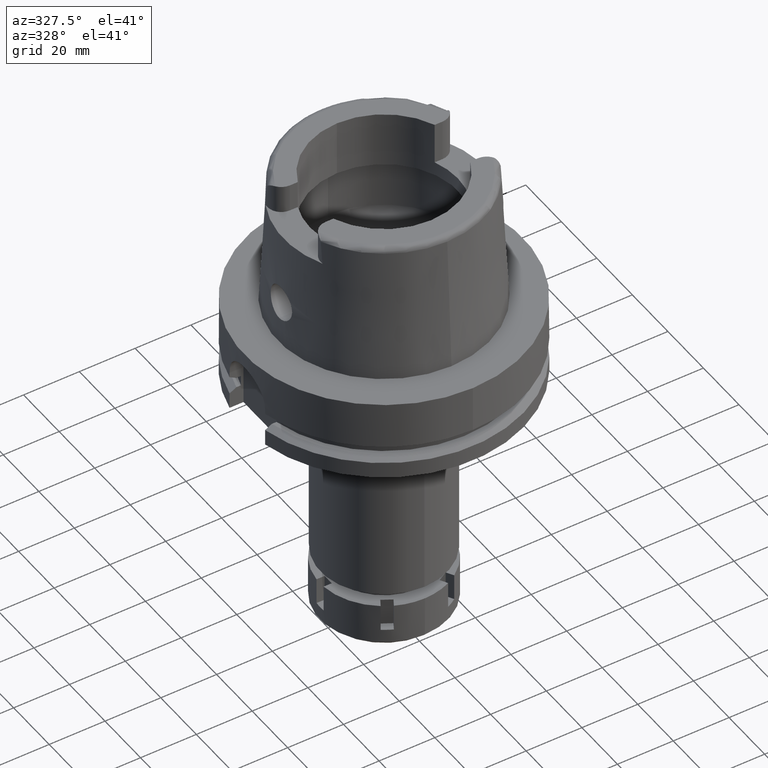
[diagram: clean part render]
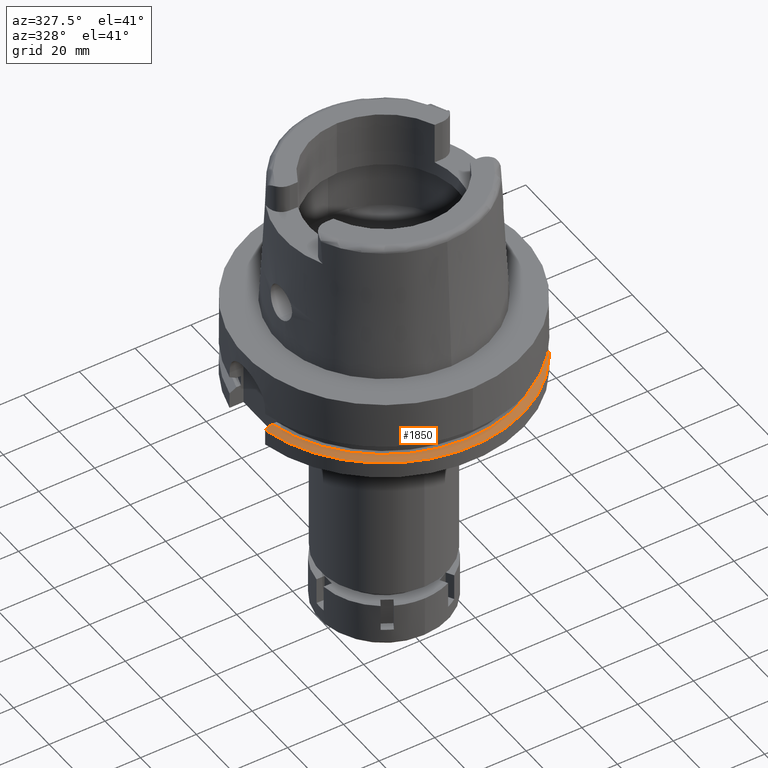
[diagram: same view with one face highlighted and labeled with its STEP entity id]
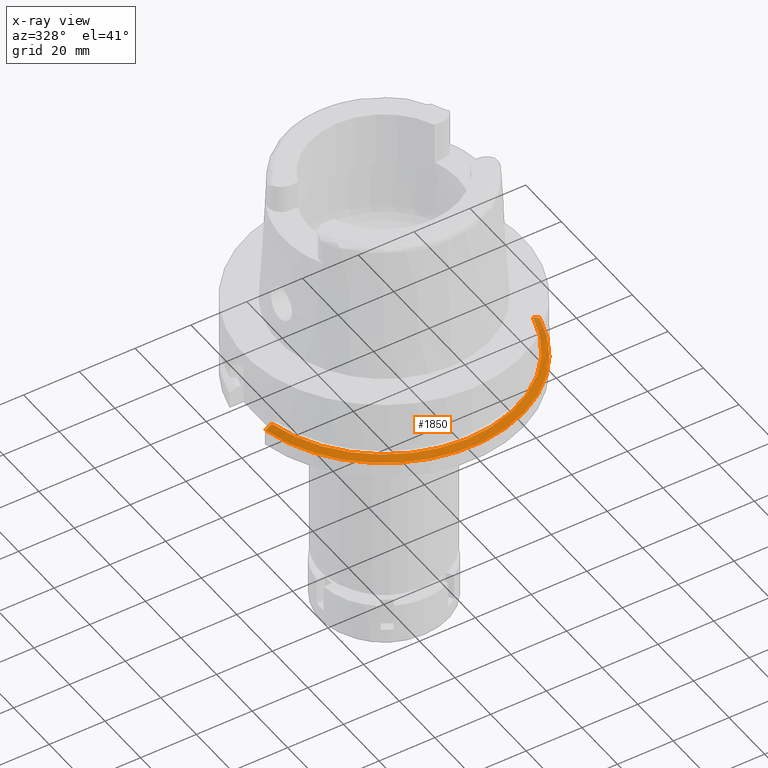
[diagram: x-ray of the same camera — body ghosted, the highlighted face saturated]
A machine part, auxiliary view. The second image highlights one B-rep face of the part: STEP entity #1850.
The next image is the same camera in x-ray: the body ghosted, the highlighted face saturated — about 5% of this face is hidden behind the body in this view.
In plain terms, the highlighted conical surface has half-angle 60 deg.
Its self-contained STEP definition (entity closure, byte-faithful):
#237 = ORIENTED_EDGE ( 'NONE', *, *, #2490, .F. ) ;
#378 = CARTESIAN_POINT ( 'NONE',  ( 48.77499359303000404, -11.00000000000000000, -23.24759526419000011 ) ) ;
#433 = ORIENTED_EDGE ( 'NONE', *, *, #1441, .F. ) ;
#634 = FACE_OUTER_BOUND ( 'NONE', #4365, .T. ) ;
#661 = CARTESIAN_POINT ( 'NONE',  ( 0.0000000000000000000, 0.0000000000000000000, -22.56129763209999695 ) ) ;
#687 = B_SPLINE_CURVE_WITH_KNOTS ( 'NONE', 3,
 ( #4391, #3540, #5406, #1218, #5807, #3092 ),
 .UNSPECIFIED., .F., .F.,
 ( 4, 1, 1, 4 ),
 ( 0.0000000000000000000, 0.3333333333333000081, 0.6666666666667000474, 1.000000000000000000 ),
 .UNSPECIFIED. ) ;
#837 = B_SPLINE_CURVE_WITH_KNOTS ( 'NONE', 3,
 ( #5951, #2729, #3106, #5068, #2279, #378 ),
 .UNSPECIFIED., .F., .F.,
 ( 4, 1, 1, 4 ),
 ( 0.0000000000000000000, 0.3333333333333000081, 0.6666666666667000474, 1.000000000000000000 ),
 .UNSPECIFIED. ) ;
#956 = CARTESIAN_POINT ( 'NONE',  ( 48.77499359303000404, -11.00000000000000000, -23.24759526419000011 ) ) ;
#1143 = DIRECTION ( 'NONE',  ( 0.0000000000000000000, 0.0000000000000000000, -1.000000000000000000 ) ) ;
#1218 = CARTESIAN_POINT ( 'NONE',  ( -47.37076227628000424, -10.00000000000000000, -22.33230648793000128 ) ) ;
#1441 = EDGE_CURVE ( 'NONE', #2589, #3979, #687, .T. ) ;
#1762 = CARTESIAN_POINT ( 'NONE',  ( 0.0000000000000000000, 0.0000000000000000000, -21.87500000000000000 ) ) ;
#1850 = ADVANCED_FACE ( 'NONE', ( #634 ), #5194, .T. ) ;
#2006 = AXIS2_PLACEMENT_3D ( 'NONE', #1762, #5458, #2683 ) ;
#2043 = CARTESIAN_POINT ( 'NONE',  ( 0.0000000000000000000, 0.0000000000000000000, -23.24759526419000011 ) ) ;
#2165 = CIRCLE ( 'NONE', #4674, 50.00000000000000711 ) ;
#2279 = CARTESIAN_POINT ( 'NONE',  ( 48.50399904748000068, -11.00000000000000000, -23.09496975037999889 ) ) ;
#2490 = EDGE_CURVE ( 'NONE', #3684, #4741, #837, .T. ) ;
#2530 = DIRECTION ( 'NONE',  ( 0.0000000000000000000, 0.0000000000000000000, -1.000000000000000000 ) ) ;
#2589 = VERTEX_POINT ( 'NONE', #4646 ) ;
#2683 = DIRECTION ( 'NONE',  ( 0.0000000000000000000, -1.000000000000000000, 0.0000000000000000000 ) ) ;
#2729 = CARTESIAN_POINT ( 'NONE',  ( 46.60605711264999940, -11.00000000000000000, -22.02738808210999721 ) ) ;
#3053 = EDGE_CURVE ( 'NONE', #3684, #3979, #5218, .T. ) ;
#3092 = CARTESIAN_POINT ( 'NONE',  ( -46.56083740329999898, -10.00000000000000000, -21.87500000000000000 ) ) ;
#3106 = CARTESIAN_POINT ( 'NONE',  ( 47.14851446811000102, -11.00000000000000000, -22.33225649733000040 ) ) ;
#3259 = AXIS2_PLACEMENT_3D ( 'NONE', #661, #1143, #4962 ) ;
#3280 = ORIENTED_EDGE ( 'NONE', *, *, #3053, .T. ) ;
#3540 = CARTESIAN_POINT ( 'NONE',  ( -48.72002593965999750, -10.00000000000000000, -23.09499092030999989 ) ) ;
#3579 = ORIENTED_EDGE ( 'NONE', *, *, #4553, .F. ) ;
#3684 = VERTEX_POINT ( 'NONE', #5109 ) ;
#3979 = VERTEX_POINT ( 'NONE', #5645 ) ;
#4365 = EDGE_LOOP ( 'NONE', ( #433, #3579, #237, #3280 ) ) ;
#4391 = CARTESIAN_POINT ( 'NONE',  ( -48.98979485565999425, -10.00000000000000000, -23.24759526419000011 ) ) ;
#4553 = EDGE_CURVE ( 'NONE', #4741, #2589, #2165, .T. ) ;
#4646 = CARTESIAN_POINT ( 'NONE',  ( -48.98979485565999425, -10.00000000000000000, -23.24759526419000011 ) ) ;
#4674 = AXIS2_PLACEMENT_3D ( 'NONE', #2043, #2530, #5797 ) ;
#4741 = VERTEX_POINT ( 'NONE', #956 ) ;
#4962 = DIRECTION ( 'NONE',  ( 0.0000000000000000000, -1.000000000000000000, 0.0000000000000000000 ) ) ;
#5068 = CARTESIAN_POINT ( 'NONE',  ( 47.96191616323000062, -11.00000000000000000, -22.78979543230000004 ) ) ;
#5109 = CARTESIAN_POINT ( 'NONE',  ( 46.33477721644000269, -11.00000000000000000, -21.87500000000000000 ) ) ;
#5194 = CONICAL_SURFACE ( 'NONE', #3259, 48.81129763208999606, 1.047197551196400456 ) ;
#5218 = CIRCLE ( 'NONE', #2006, 47.62259526418999656 ) ;
#5406 = CARTESIAN_POINT ( 'NONE',  ( -48.18041161677000161, -10.00000000000000000, -22.78984413388999997 ) ) ;
#5458 = DIRECTION ( 'NONE',  ( 0.0000000000000000000, 0.0000000000000000000, -1.000000000000000000 ) ) ;
#5645 = CARTESIAN_POINT ( 'NONE',  ( -46.56083740329999898, -10.00000000000000000, -21.87500000000000000 ) ) ;
#5797 = DIRECTION ( 'NONE',  ( 0.9754998718605770724, -0.2199999999999950051, 0.0000000000000000000 ) ) ;
#5807 = CARTESIAN_POINT ( 'NONE',  ( -46.83084020607000042, -10.00000000000000000, -22.02741066863000086 ) ) ;
#5951 = CARTESIAN_POINT ( 'NONE',  ( 46.33477721644000269, -11.00000000000000000, -21.87500000000000000 ) ) ;